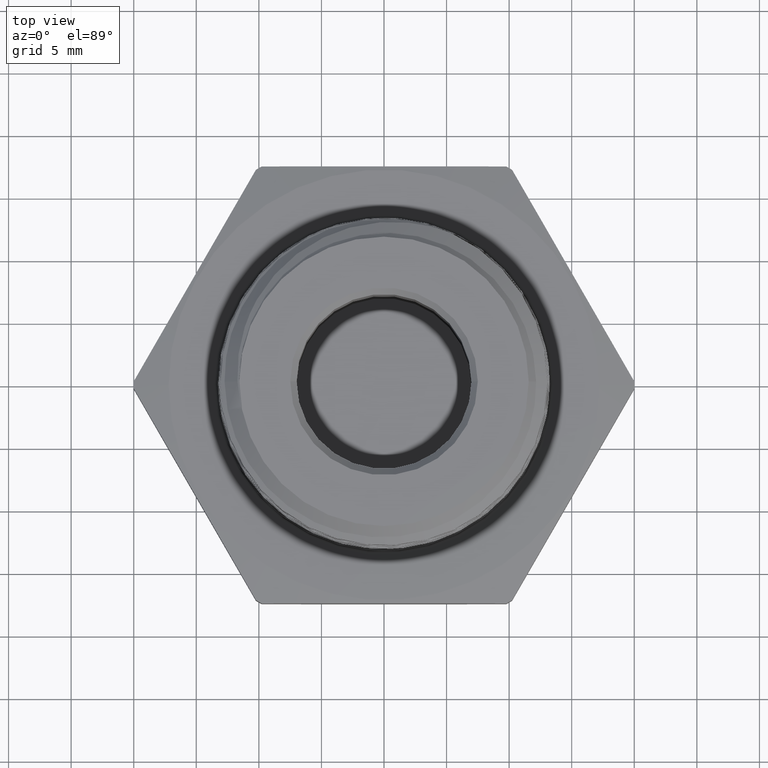
[diagram: clean part render]
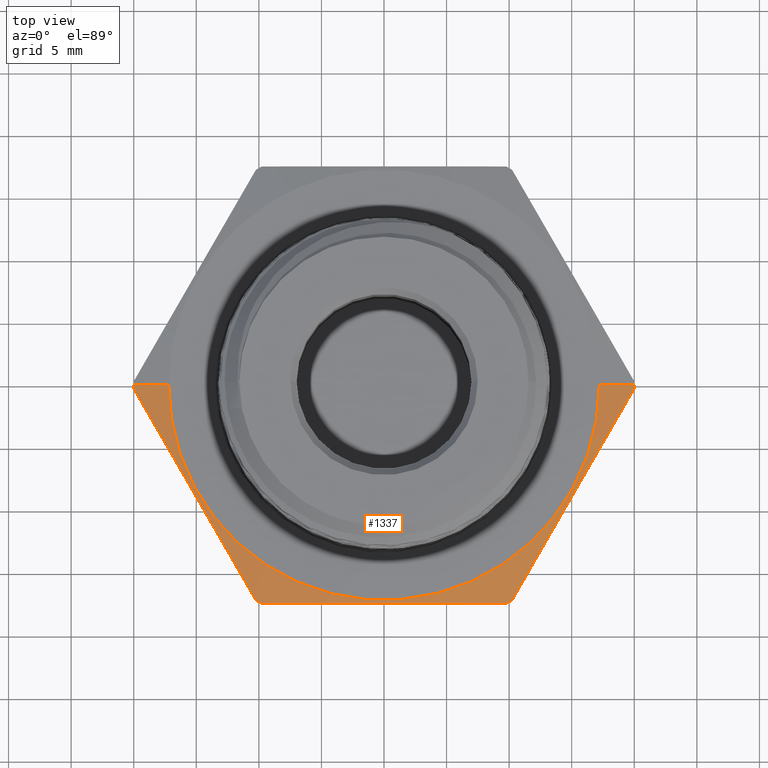
[diagram: same view with one face highlighted and labeled with its STEP entity id]
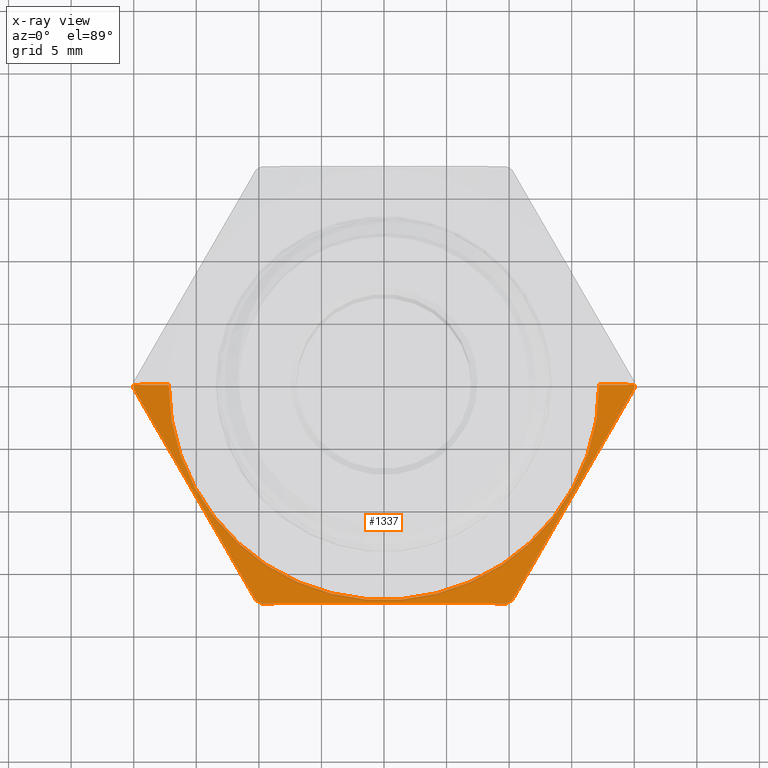
[diagram: x-ray of the same camera — body ghosted, the highlighted face saturated]
A machine part, top view. The second image highlights one B-rep face of the part: STEP entity #1337.
The next image is the same camera in x-ray: the body ghosted, the highlighted face saturated — about 0% of this face is hidden behind the body in this view.
In plain terms, the highlighted conical surface has half-angle 78 deg.
Its self-contained STEP definition (entity closure, byte-faithful):
#230 = B_SPLINE_CURVE_WITH_KNOTS ( 'NONE', 3,
 ( #3293, #3288, #2688, #2689, #2690, #2691, #2692, #2693, #2694 ),
 .UNSPECIFIED., .F., .F.,
 ( 4, 2, 1, 2, 4 ),
 ( 1.926409279405401200E-006, 0.004888733991913808200, 0.009775541574548209800, 0.01466234915718260700, 0.01954915673981700400 ),
 .UNSPECIFIED. ) ;
#231 = B_SPLINE_CURVE_WITH_KNOTS ( 'NONE', 3,
 ( #2696, #2695, #2707, #2708, #2709, #2710, #2711, #2712, #2713 ),
 .UNSPECIFIED., .F., .F.,
 ( 4, 2, 1, 2, 4 ),
 ( 1.926409279382100100E-006, 0.004888733991913784800, 0.009775541574548187200, 0.01466234915718259000, 0.01954915673981699000 ),
 .UNSPECIFIED. ) ;
#235 = B_SPLINE_CURVE_WITH_KNOTS ( 'NONE', 3,
 ( #2687, #2686, #2697, #2698, #2699, #2700, #2701, #2702, #2703, #2704 ),
 .UNSPECIFIED., .F., .F.,
 ( 4, 2, 2, 2, 4 ),
 ( 0.03842031797664890300, 0.04332173747623432900, 0.04822315697581974800, 0.05312457647540516600, 0.05802599597499059200 ),
 .UNSPECIFIED. ) ;
#253 = EDGE_LOOP ( 'NONE', ( #897, #898, #899, #900, #901, #902, #903, #904, #905, #906 ) ) ;
#545 = AXIS2_PLACEMENT_3D ( 'NONE', #3199, #3195, #3196 ) ;
#550 = AXIS2_PLACEMENT_3D ( 'NONE', #3252, #3253, #3254 ) ;
#553 = AXIS2_PLACEMENT_3D ( 'NONE', #3265, #3266, #3267 ) ;
#555 = AXIS2_PLACEMENT_3D ( 'NONE', #3276, #3277, #3278 ) ;
#556 = AXIS2_PLACEMENT_3D ( 'NONE', #3285, #3286, #3287 ) ;
#586 = AXIS2_PLACEMENT_3D ( 'NONE', #3789, #3790, #3791 ) ;
#723 = FACE_OUTER_BOUND ( 'NONE', #253, .T. ) ;
#726 = CONICAL_SURFACE ( 'NONE', #545, 0.6774999999999999900, 1.361356816555583600 ) ;
#727 = CIRCLE ( 'NONE', #550, 0.6774999999999999900 ) ;
#735 = CIRCLE ( 'NONE', #553, 0.7878566201357354300 ) ;
#741 = CIRCLE ( 'NONE', #555, 0.7878566201357354300 ) ;
#746 = CIRCLE ( 'NONE', #556, 0.7878566201357354300 ) ;
#807 = LINE ( 'NONE', #3740, #818 ) ;
#816 = LINE ( 'NONE', #3782, #824 ) ;
#818 = VECTOR ( 'NONE', #3735, 39.37007874015748100 ) ;
#823 = CIRCLE ( 'NONE', #586, 0.7878566201357354300 ) ;
#824 = VECTOR ( 'NONE', #3739, 39.37007874015748100 ) ;
#897 = ORIENTED_EDGE ( 'NONE', *, *, #1932, .F. ) ;
#898 = ORIENTED_EDGE ( 'NONE', *, *, #1863, .T. ) ;
#899 = ORIENTED_EDGE ( 'NONE', *, *, #1940, .T. ) ;
#900 = ORIENTED_EDGE ( 'NONE', *, *, #1941, .F. ) ;
#901 = ORIENTED_EDGE ( 'NONE', *, *, #1882, .F. ) ;
#902 = ORIENTED_EDGE ( 'NONE', *, *, #1867, .F. ) ;
#903 = ORIENTED_EDGE ( 'NONE', *, *, #1883, .F. ) ;
#904 = ORIENTED_EDGE ( 'NONE', *, *, #1872, .F. ) ;
#905 = ORIENTED_EDGE ( 'NONE', *, *, #1884, .F. ) ;
#906 = ORIENTED_EDGE ( 'NONE', *, *, #1875, .F. ) ;
#1073 = VERTEX_POINT ( 'NONE', #3095 ) ;
#1075 = VERTEX_POINT ( 'NONE', #3097 ) ;
#1076 = VERTEX_POINT ( 'NONE', #3098 ) ;
#1089 = VERTEX_POINT ( 'NONE', #3111 ) ;
#1124 = VERTEX_POINT ( 'NONE', #3146 ) ;
#1125 = VERTEX_POINT ( 'NONE', #3147 ) ;
#1127 = VERTEX_POINT ( 'NONE', #3149 ) ;
#1130 = VERTEX_POINT ( 'NONE', #3152 ) ;
#1140 = VERTEX_POINT ( 'NONE', #3162 ) ;
#1142 = VERTEX_POINT ( 'NONE', #3164 ) ;
#1337 = ADVANCED_FACE ( 'NONE', ( #723 ), #726, .T. ) ;
#1863 = EDGE_CURVE ( 'NONE', #1142, #1140, #727, .T. ) ;
#1867 = EDGE_CURVE ( 'NONE', #1124, #1075, #735, .T. ) ;
#1872 = EDGE_CURVE ( 'NONE', #1076, #1073, #741, .T. ) ;
#1875 = EDGE_CURVE ( 'NONE', #1130, #1089, #746, .T. ) ;
#1882 = EDGE_CURVE ( 'NONE', #1075, #1125, #230, .T. ) ;
#1883 = EDGE_CURVE ( 'NONE', #1073, #1124, #235, .T. ) ;
#1884 = EDGE_CURVE ( 'NONE', #1089, #1076, #231, .T. ) ;
#1932 = EDGE_CURVE ( 'NONE', #1142, #1130, #807, .T. ) ;
#1940 = EDGE_CURVE ( 'NONE', #1140, #1127, #816, .T. ) ;
#1941 = EDGE_CURVE ( 'NONE', #1125, #1127, #823, .T. ) ;
#2686 = CARTESIAN_POINT ( 'NONE',  ( 0.3207939255436971200, -0.6874999999999998900, 0.1731863486800747100 ) ) ;
#2687 = CARTESIAN_POINT ( 'NONE',  ( 0.3847879986326296900, -0.6874999999999998900, 0.1665429762664239500 ) ) ;
#2688 = CARTESIAN_POINT ( 'NONE',  ( -0.4671297988909246500, -0.5659074545914862800, 0.1785865953667217500 ) ) ;
#2689 = CARTESIAN_POINT ( 'NONE',  ( -0.5312611319963630500, -0.4548287272957433100, 0.1859337814919883600 ) ) ;
#2690 = CARTESIAN_POINT ( 'NONE',  ( -0.5953924651018014400, -0.3437500000000002800, 0.1898150872746114100 ) ) ;
#2691 = CARTESIAN_POINT ( 'NONE',  ( -0.6595237982072395000, -0.2326712727042569200, 0.1859337814919883300 ) ) ;
#2692 = CARTESIAN_POINT ( 'NONE',  ( -0.7236551313126781100, -0.1215925454085139100, 0.1785865953667217200 ) ) ;
#2693 = CARTESIAN_POINT ( 'NONE',  ( -0.7557207978653971400, -0.06605318176064239900, 0.1732005979591584900 ) ) ;
#2694 = CARTESIAN_POINT ( 'NONE',  ( -0.7877864644181163900, -0.01051381811277086300, 0.1665429762664240900 ) ) ;
#2695 = CARTESIAN_POINT ( 'NONE',  ( 0.7557207978653972500, -0.06605318176064173300, 0.1732005979591584000 ) ) ;
#2696 = CARTESIAN_POINT ( 'NONE',  ( 0.7877864644181163900, -0.01051381811277011200, 0.1665429762664238900 ) ) ;
#2697 = CARTESIAN_POINT ( 'NONE',  ( 0.2567715100175838000, -0.6875000000000000000, 0.1785668769994930300 ) ) ;
#2698 = CARTESIAN_POINT ( 'NONE',  ( 0.1286501301706381400, -0.6874999999999998900, 0.1859171756744034700 ) ) ;
#2699 = CARTESIAN_POINT ( 'NONE',  ( 0.06455070300540921600, -0.6874999999999998900, 0.1878663232334452900 ) ) ;
#2700 = CARTESIAN_POINT ( 'NONE',  ( -0.06373527915191769300, -0.6874999999999998900, 0.1878824941396054200 ) ) ;
#2701 = CARTESIAN_POINT ( 'NONE',  ( -0.1279218474649859400, -0.6875000000000000000, 0.1859489239488872100 ) ) ;
#2702 = CARTESIAN_POINT ( 'NONE',  ( -0.2563731341799861400, -0.6875000000000000000, 0.1785996772984828900 ) ) ;
#2703 = CARTESIAN_POINT ( 'NONE',  ( -0.3206987692007933200, -0.6875000000000001100, 0.1731962270796346400 ) ) ;
#2704 = CARTESIAN_POINT ( 'NONE',  ( -0.3847879986326295200, -0.6875000000000000000, 0.1665429762664240300 ) ) ;
#2707 = CARTESIAN_POINT ( 'NONE',  ( 0.7236551313126781100, -0.1215925454085133600, 0.1785865953667215600 ) ) ;
#2708 = CARTESIAN_POINT ( 'NONE',  ( 0.6595237982072397200, -0.2326712727042565300, 0.1859337814919881900 ) ) ;
#2709 = CARTESIAN_POINT ( 'NONE',  ( 0.5953924651018013300, -0.3437499999999998300, 0.1898150872746112400 ) ) ;
#2710 = CARTESIAN_POINT ( 'NONE',  ( 0.5312611319963631600, -0.4548287272957429700, 0.1859337814919881600 ) ) ;
#2711 = CARTESIAN_POINT ( 'NONE',  ( 0.4671297988909250400, -0.5659074545914859500, 0.1785865953667216100 ) ) ;
#2712 = CARTESIAN_POINT ( 'NONE',  ( 0.4350641323382057300, -0.6214468182393576600, 0.1732005979591584000 ) ) ;
#2713 = CARTESIAN_POINT ( 'NONE',  ( 0.4029984657854864300, -0.6769861818872293700, 0.1665429762664239500 ) ) ;
#3095 = CARTESIAN_POINT ( 'NONE',  ( 0.3847879986326296900, -0.6874999999999998900, 0.1665429762664239500 ) ) ;
#3097 = CARTESIAN_POINT ( 'NONE',  ( -0.4029984657854861500, -0.6769861818872294800, 0.1665429762664240300 ) ) ;
#3098 = CARTESIAN_POINT ( 'NONE',  ( 0.4029984657854864300, -0.6769861818872293700, 0.1665429762664239500 ) ) ;
#3111 = CARTESIAN_POINT ( 'NONE',  ( 0.7877864644181163900, -0.01051381811277011200, 0.1665429762664238900 ) ) ;
#3146 = CARTESIAN_POINT ( 'NONE',  ( -0.3847879986326295200, -0.6875000000000000000, 0.1665429762664240300 ) ) ;
#3147 = CARTESIAN_POINT ( 'NONE',  ( -0.7877864644181163900, -0.01051381811277086300, 0.1665429762664240900 ) ) ;
#3149 = CARTESIAN_POINT ( 'NONE',  ( -0.7878566201357354300, 0.0000000000000000000, 0.1665429762664240900 ) ) ;
#3152 = CARTESIAN_POINT ( 'NONE',  ( 0.7878566201357355400, 9.648460880362807100E-017, 0.1665429762664238900 ) ) ;
#3162 = CARTESIAN_POINT ( 'NONE',  ( -0.6774999999999997700, 0.0000000000000000000, 0.1899999999999999700 ) ) ;
#3164 = CARTESIAN_POINT ( 'NONE',  ( 0.6775000000000001000, 8.296982064223318700E-017, 0.1899999999999998600 ) ) ;
#3195 = DIRECTION ( 'NONE',  ( -1.254986547952384500E-016, -0.0000000000000000000, -1.000000000000000000 ) ) ;
#3196 = DIRECTION ( 'NONE',  ( -1.000000000000000000, 0.0000000000000000000, 1.008061990282016000E-016 ) ) ;
#3199 = CARTESIAN_POINT ( 'NONE',  ( 2.384474441109529400E-017, 0.0000000000000000000, 0.1899999999999999200 ) ) ;
#3252 = CARTESIAN_POINT ( 'NONE',  ( 2.384474441109529400E-017, 0.0000000000000000000, 0.1899999999999999200 ) ) ;
#3253 = DIRECTION ( 'NONE',  ( -1.254986547952384500E-016, -0.0000000000000000000, -1.000000000000000000 ) ) ;
#3254 = DIRECTION ( 'NONE',  ( -1.000000000000000000, 0.0000000000000000000, 1.008061990282016000E-016 ) ) ;
#3265 = CARTESIAN_POINT ( 'NONE',  ( 2.090091948703153500E-017, 0.0000000000000000000, 0.1665429762664240000 ) ) ;
#3266 = DIRECTION ( 'NONE',  ( -1.254986547952384500E-016, -0.0000000000000000000, -1.000000000000000000 ) ) ;
#3267 = DIRECTION ( 'NONE',  ( -1.000000000000000000, 0.0000000000000000000, 1.300291158875587200E-016 ) ) ;
#3276 = CARTESIAN_POINT ( 'NONE',  ( 2.090091948703153500E-017, 0.0000000000000000000, 0.1665429762664240000 ) ) ;
#3277 = DIRECTION ( 'NONE',  ( -1.254986547952384500E-016, -0.0000000000000000000, -1.000000000000000000 ) ) ;
#3278 = DIRECTION ( 'NONE',  ( -1.000000000000000000, 0.0000000000000000000, 1.300291158875587200E-016 ) ) ;
#3285 = CARTESIAN_POINT ( 'NONE',  ( 2.090091948703153500E-017, 0.0000000000000000000, 0.1665429762664240000 ) ) ;
#3286 = DIRECTION ( 'NONE',  ( -1.254986547952384500E-016, -0.0000000000000000000, -1.000000000000000000 ) ) ;
#3287 = DIRECTION ( 'NONE',  ( -1.000000000000000000, 0.0000000000000000000, 1.300291158875587200E-016 ) ) ;
#3288 = CARTESIAN_POINT ( 'NONE',  ( -0.4350641323382054600, -0.6214468182393581000, 0.1732005979591584600 ) ) ;
#3293 = CARTESIAN_POINT ( 'NONE',  ( -0.4029984657854861500, -0.6769861818872294800, 0.1665429762664240300 ) ) ;
#3735 = DIRECTION ( 'NONE',  ( 0.9781476007338069100, 1.197885328332319900E-016, -0.2079116908177530700 ) ) ;
#3739 = DIRECTION ( 'NONE',  ( -0.9781476007338069100, 0.0000000000000000000, -0.2079116908177528500 ) ) ;
#3740 = CARTESIAN_POINT ( 'NONE',  ( 0.6774999999999999900, 8.296982064223316200E-017, 0.1899999999999998600 ) ) ;
#3782 = CARTESIAN_POINT ( 'NONE',  ( -0.6774999999999999900, 0.0000000000000000000, 0.1899999999999999700 ) ) ;
#3789 = CARTESIAN_POINT ( 'NONE',  ( 2.090091948703153500E-017, 0.0000000000000000000, 0.1665429762664240000 ) ) ;
#3790 = DIRECTION ( 'NONE',  ( -1.254986547952384500E-016, -0.0000000000000000000, -1.000000000000000000 ) ) ;
#3791 = DIRECTION ( 'NONE',  ( -1.000000000000000000, 0.0000000000000000000, 1.300291158875587200E-016 ) ) ;